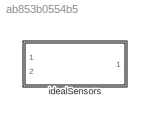
MODEL slx_ab853b0554b5
KIND library
CONFIG AbsTol = auto
CONFIG EnableMultiTasking = off
CONFIG FixedStep = auto
CONFIG MaxStep = auto
CONFIG MinStep = auto
CONFIG RelTol = 1e-3
CONFIG SampleTimeConstraint = Unconstrained
CONFIG Solver = VariableStepAuto
CONFIG SolverName = VariableStepAuto
CONFIG StartTime = 0.0
CONFIG StopTime = 10.0
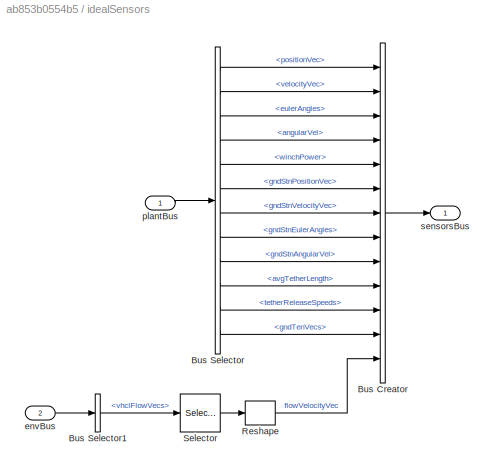
BLOCK [SubSystem] idealSensors
  InitFcn = initializeBussesFromBlock(gcb)
  LoadFcn = initializeBussesFromBlock(gcb)
  Ports = [2, 1]
  RequestExecContextInheritance = off
  StartFcn = initializeBussesFromBlock(gcb)
BLOCK [BusCreator] idealSensors/Bus Creator
  DisplayOption = bar
  InheritFromInputs = on
  Inputs = 13
  NonVirtualBus = on
  OutDataTypeStr = Bus: sensorsBus
  Ports = [13, 1]
BLOCK [BusSelector] idealSensors/Bus Selector
  OutputAsBus = off
  OutputSignals = positionVec,velocityVec,eulerAngles,angularVel,winchPower,gndStnPositionVec,gndStnVelocityVec,gndStnEulerAngles,gndStnAngularVel,avgTetherLength,tetherReleaseSpeeds,gndTenVecs
  Ports = [1, 12]
BLOCK [BusSelector] idealSensors/Bus Selector1
  OutputAsBus = off
  OutputSignals = vhclFlowVecs
  Ports = [1, 1]
BLOCK [Reshape] idealSensors/Reshape
  OutputDimensionality = Column vector (2-D)
  Ports = [1, 1]
BLOCK [Selector] idealSensors/Selector
  IndexOptions = Select all,Index vector (dialog)
  Indices = [1 3],1
  InputPortWidth = 3
  NumberOfDimensions = 2
  OutputSizes = 1,1
  Ports = [1, 1]
BLOCK [Inport] idealSensors/envBus
  IconDisplay = Port number
  OutDataTypeStr = Bus: envBus
  Port = 2
BLOCK [Inport] idealSensors/plantBus
  IconDisplay = Port number
  OutDataTypeStr = Bus: plantBus
BLOCK [Outport] idealSensors/sensorsBus
  IconDisplay = Port number
  OutDataTypeStr = Bus: sensorsBus
LINE idealSensors/Bus Creator:1 -> idealSensors/sensorsBus:1
LINE idealSensors/Bus Selector1:1 -> idealSensors/Selector:1
LINE idealSensors/Bus Selector:1 -> idealSensors/Bus Creator:1
LINE idealSensors/Bus Selector:10 -> idealSensors/Bus Creator:10
LINE idealSensors/Bus Selector:11 -> idealSensors/Bus Creator:11
LINE idealSensors/Bus Selector:12 -> idealSensors/Bus Creator:12
LINE idealSensors/Bus Selector:2 -> idealSensors/Bus Creator:2
LINE idealSensors/Bus Selector:3 -> idealSensors/Bus Creator:3
LINE idealSensors/Bus Selector:4 -> idealSensors/Bus Creator:4
LINE idealSensors/Bus Selector:5 -> idealSensors/Bus Creator:5
LINE idealSensors/Bus Selector:6 -> idealSensors/Bus Creator:6
LINE idealSensors/Bus Selector:7 -> idealSensors/Bus Creator:7
LINE idealSensors/Bus Selector:8 -> idealSensors/Bus Creator:8
LINE idealSensors/Bus Selector:9 -> idealSensors/Bus Creator:9
LINE idealSensors/Reshape:1 -> idealSensors/Bus Creator:13
LINE idealSensors/Selector:1 -> idealSensors/Reshape:1
LINE idealSensors/envBus:1 -> idealSensors/Bus Selector1:1
LINE idealSensors/plantBus:1 -> idealSensors/Bus Selector:1
